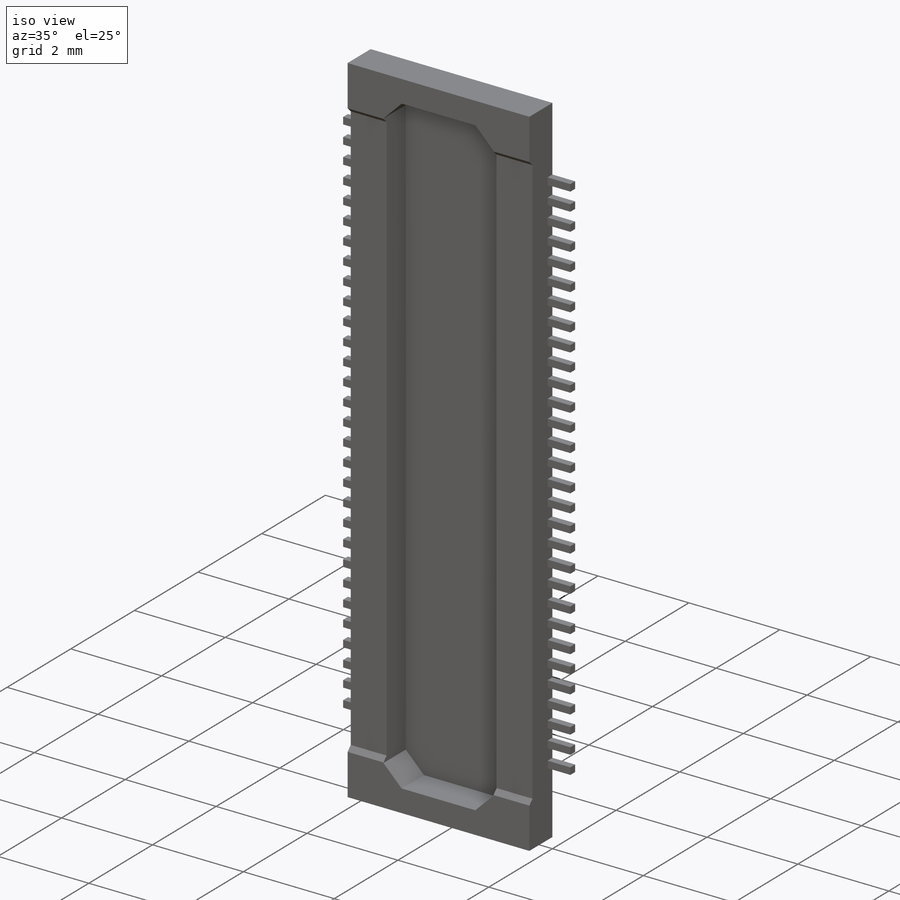
[diagram: iso view]
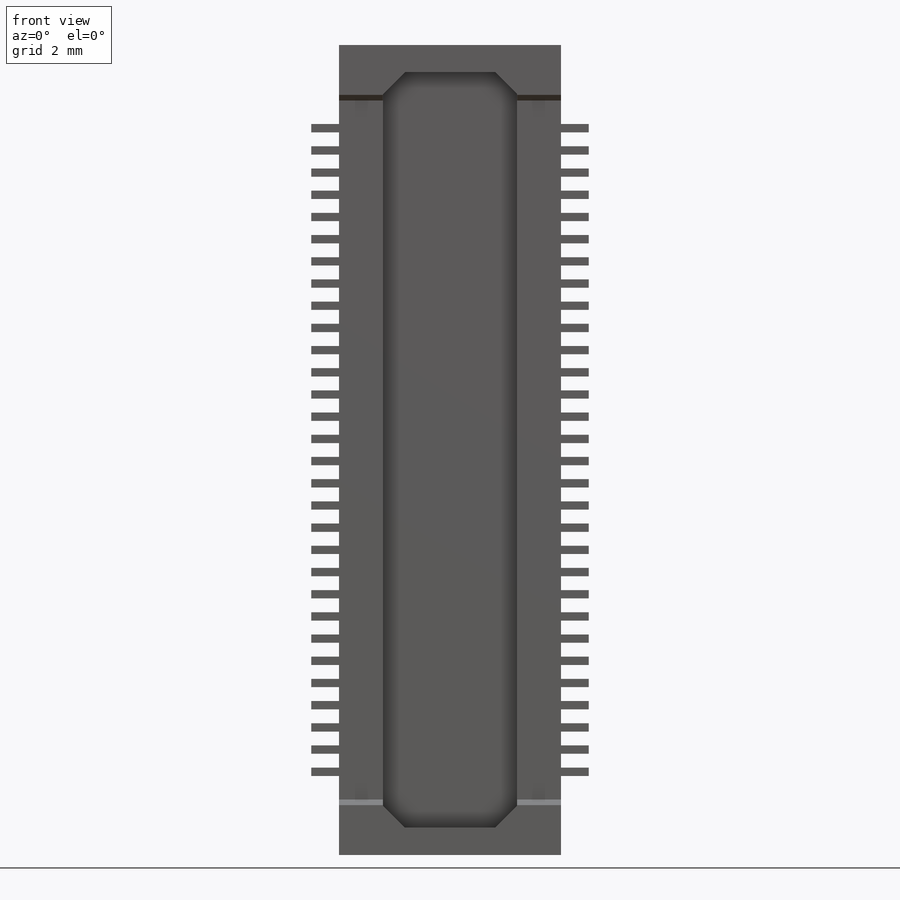
[diagram: front view]
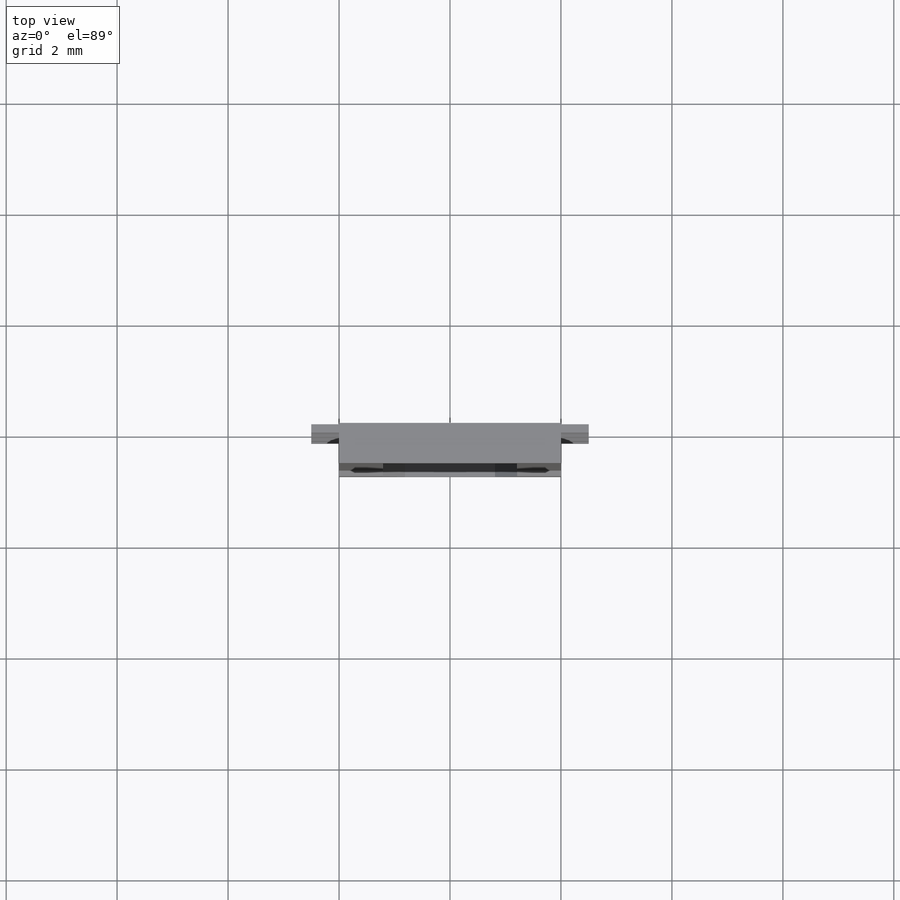
[diagram: top view]
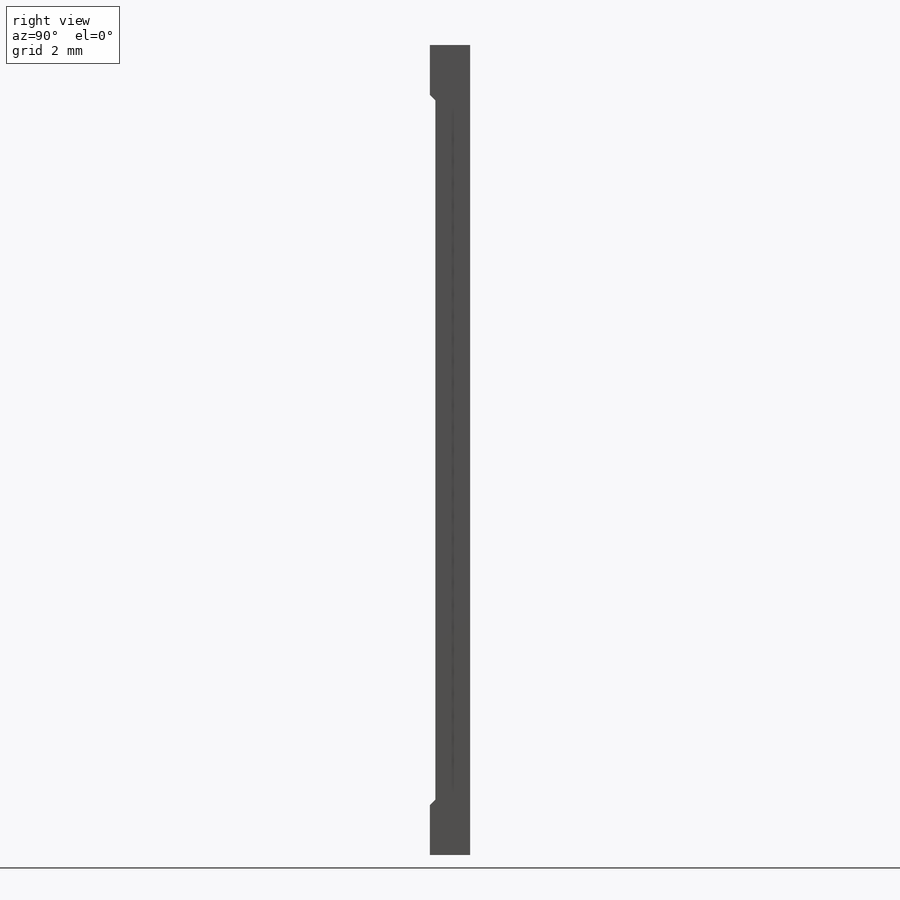
[diagram: right view]
SOLIDWORKS PART (.sldprt)
format: sldprt  version: not decoded by parser v0  size: 1,658,880 bytes
history: native  units: mm
features: plane x4, sketch x4, chamfer x4, extrude x2, cut_extrude x2, material x1, mirror x1, pattern_linear x1 (+12 scaffold rows collapsed)
feature tree (31):
  scaffold x12  (default folders/planes/origin — collapsed)
  material  "Material <not specified>"
  plane  "Plane1"
  plane  "Plane2"
  plane  "Plane3"
  plane  "Plane4"
  sketch  "Sketch1"  dims[D1=4.0mm D2=22.6mm]
  extrude  "Extrude1"  Depth=0.725mm
  sketch  "Sketch2"  dims[c1.D1=11.16mm c1.D2=2.34mm c2.D1=0.53mm c2.D2=0.71mm c3.D1=21.62mm c3.D2=2.42mm]
  cut_extrude  "Cut-Extrude1"  Depth=0.7mm
  sketch  "Sketch3"  dims[c1.D1=0.1mm c1.D2=0.1mm c2.D2=45.0deg c2.D3=0.9mm]
  cut_extrude  "Cut-Extrude2"  [1 undecoded]
  sketch  "Sketch29"  dims[D1=0.15mm D2=0.15mm D3=9.8mm]
  extrude  "Extrude26"  Depth=0.5mm
  mirror  "Mirror1"
  chamfer  "Chamfer1"  Distance=0.4mm Angle=45deg
  chamfer  "Chamfer2"  Distance=0.4mm Angle=45deg
  chamfer  "Chamfer3"  Distance=0.4mm Angle=45deg
  chamfer  "Chamfer4"  Distance=0.4mm Angle=45deg
  pattern_linear  "LPattern1"  Count1=50 Count2=1 Spacing1=0.4mm Spacing2=2.54mm
decode coverage: 12 of 14 modeling features carry decoded parameters
note: 1 parameter value undecoded
note: suppression state not decoded; provenance and decode notes live in map.json
